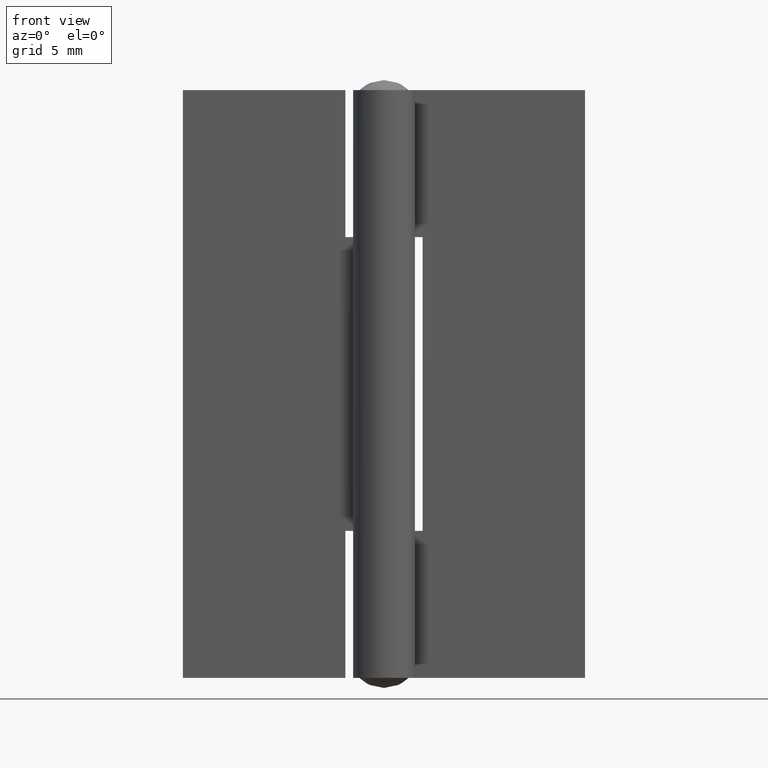
[diagram: clean part render]
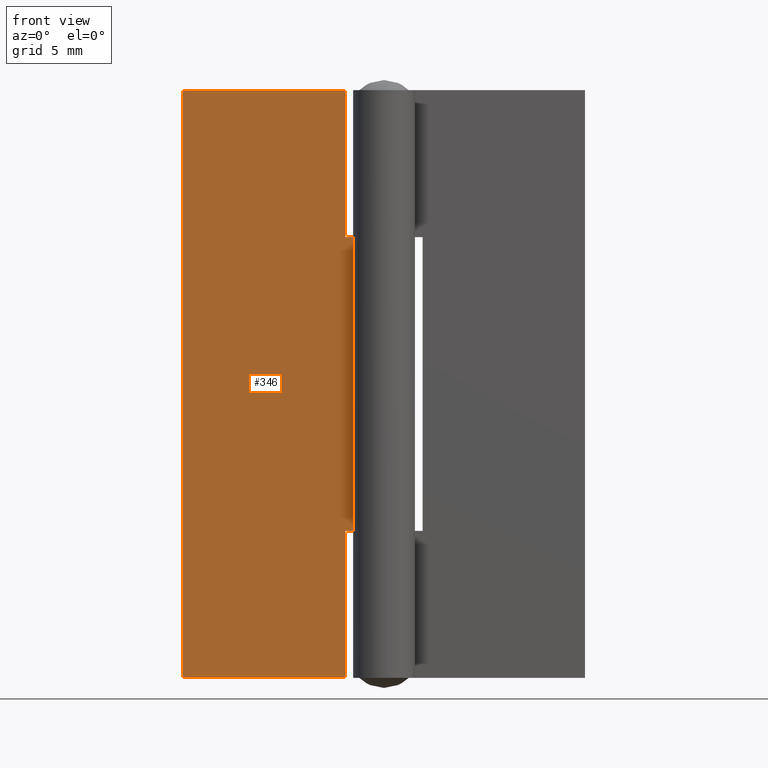
[diagram: same view with one face highlighted and labeled with its STEP entity id]
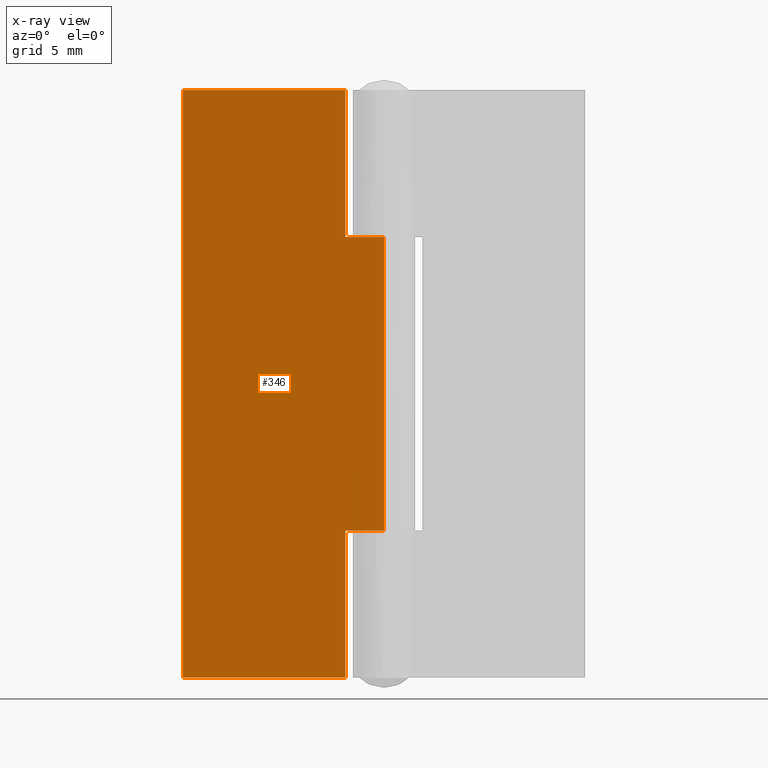
[diagram: x-ray of the same camera — body ghosted, the highlighted face saturated]
A machine part, front view. The second image highlights one B-rep face of the part: STEP entity #346.
The next image is the same camera in x-ray: the body ghosted, the highlighted face saturated — about 0% of this face is hidden behind the body in this view.
In plain terms, the highlighted face is a freeform B-spline surface patch.
Its self-contained STEP definition (entity closure, byte-faithful):
#10=CARTESIAN_POINT('',(-2.500000000000000,1.199999999999980,38.0));
#11=VERTEX_POINT('',#10);
#12=CARTESIAN_POINT('',(-2.500000000000000,1.199999999999980,28.500000000000000));
#13=VERTEX_POINT('',#12);
#14=CARTESIAN_POINT('',(-2.500000000000000,1.199999999999980,38.0));
#15=CARTESIAN_POINT('',(-2.500000000000000,1.199999999999980,28.500000000000000));
#16=QUASI_UNIFORM_CURVE('',1,(#14,#15),.UNSPECIFIED.,.F.,.U.);
#17=EDGE_CURVE('',#11,#13,#16,.T.);
#91=CARTESIAN_POINT('',(7.347614E-017,1.200000000000000,28.500000000000000));
#92=VERTEX_POINT('',#91);
#93=CARTESIAN_POINT('',(-2.500000000000000,1.199999999999980,28.500000000000000));
#94=CARTESIAN_POINT('',(7.347614E-017,1.200000000000000,28.500000000000000));
#95=QUASI_UNIFORM_CURVE('',1,(#93,#94),.UNSPECIFIED.,.F.,.U.);
#96=EDGE_CURVE('',#13,#92,#95,.T.);
#187=CARTESIAN_POINT('',(7.347481E-017,1.200000000000000,9.500000000000000));
#188=VERTEX_POINT('',#187);
#217=CARTESIAN_POINT('',(-2.500000000000000,1.199999999999980,9.500000000000000));
#218=VERTEX_POINT('',#217);
#219=CARTESIAN_POINT('',(7.347481E-017,1.200000000000000,9.500000000000000));
#220=CARTESIAN_POINT('',(-2.500000000000000,1.199999999999980,9.500000000000000));
#221=QUASI_UNIFORM_CURVE('',1,(#219,#220),.UNSPECIFIED.,.F.,.U.);
#222=EDGE_CURVE('',#188,#218,#221,.T.);
#244=CARTESIAN_POINT('',(-2.500000000000000,1.200000000000000,0.0));
#245=VERTEX_POINT('',#244);
#246=CARTESIAN_POINT('',(-2.500000000000000,1.199999999999980,9.500000000000000));
#247=CARTESIAN_POINT('',(-2.500000000000000,1.200000000000000,0.0));
#248=QUASI_UNIFORM_CURVE('',1,(#246,#247),.UNSPECIFIED.,.F.,.U.);
#249=EDGE_CURVE('',#218,#245,#248,.T.);
#273=CARTESIAN_POINT('',(-13.0,1.200000000000000,0.0));
#274=VERTEX_POINT('',#273);
#275=CARTESIAN_POINT('',(-2.500000000000000,1.200000000000000,0.0));
#276=CARTESIAN_POINT('',(-13.0,1.200000000000000,0.0));
#277=QUASI_UNIFORM_CURVE('',1,(#275,#276),.UNSPECIFIED.,.F.,.U.);
#278=EDGE_CURVE('',#245,#274,#277,.T.);
#300=CARTESIAN_POINT('',(-13.0,1.200000000000000,38.0));
#301=VERTEX_POINT('',#300);
#302=CARTESIAN_POINT('',(-2.500000000000000,1.199999999999980,38.0));
#303=CARTESIAN_POINT('',(-13.0,1.200000000000000,38.0));
#304=QUASI_UNIFORM_CURVE('',1,(#302,#303),.UNSPECIFIED.,.F.,.U.);
#305=EDGE_CURVE('',#11,#301,#304,.T.);
#323=CARTESIAN_POINT('',(-13.649349974803480,1.200000000000000,39.898099926348621));
#324=CARTESIAN_POINT('',(-13.649349974803480,1.200000000000000,-1.898100945588053));
#325=CARTESIAN_POINT('',(0.649350323490649,1.200000000000000,39.898099926348621));
#326=CARTESIAN_POINT('',(0.649350323490649,1.200000000000000,-1.898100945588053));
#327=B_SPLINE_SURFACE_WITH_KNOTS('',1,1,((#323,#325),(#324,#326)),.UNSPECIFIED.,.F.,.F.,.U.,(2,2),(2,2),(0.0,41.796200871936684),(0.0,14.298700298294129),.UNSPECIFIED.);
#328=ORIENTED_EDGE('',*,*,#96,.F.);
#329=ORIENTED_EDGE('',*,*,#17,.F.);
#330=ORIENTED_EDGE('',*,*,#305,.T.);
#331=CARTESIAN_POINT('',(-13.0,1.200000000000000,38.0));
#332=CARTESIAN_POINT('',(-13.0,1.200000000000000,0.0));
#333=QUASI_UNIFORM_CURVE('',1,(#331,#332),.UNSPECIFIED.,.F.,.U.);
#334=EDGE_CURVE('',#301,#274,#333,.T.);
#335=ORIENTED_EDGE('',*,*,#334,.T.);
#336=ORIENTED_EDGE('',*,*,#278,.F.);
#337=ORIENTED_EDGE('',*,*,#249,.F.);
#338=ORIENTED_EDGE('',*,*,#222,.F.);
#339=CARTESIAN_POINT('',(7.347614E-017,1.200000000000000,28.500000000000000));
#340=CARTESIAN_POINT('',(7.347481E-017,1.200000000000000,9.500000000000000));
#341=QUASI_UNIFORM_CURVE('',1,(#339,#340),.UNSPECIFIED.,.F.,.U.);
#342=EDGE_CURVE('',#92,#188,#341,.T.);
#343=ORIENTED_EDGE('',*,*,#342,.F.);
#344=EDGE_LOOP('',(#328,#329,#330,#335,#336,#337,#338,#343));
#345=FACE_OUTER_BOUND('',#344,.T.);
#346=ADVANCED_FACE('',(#345),#327,.T.);